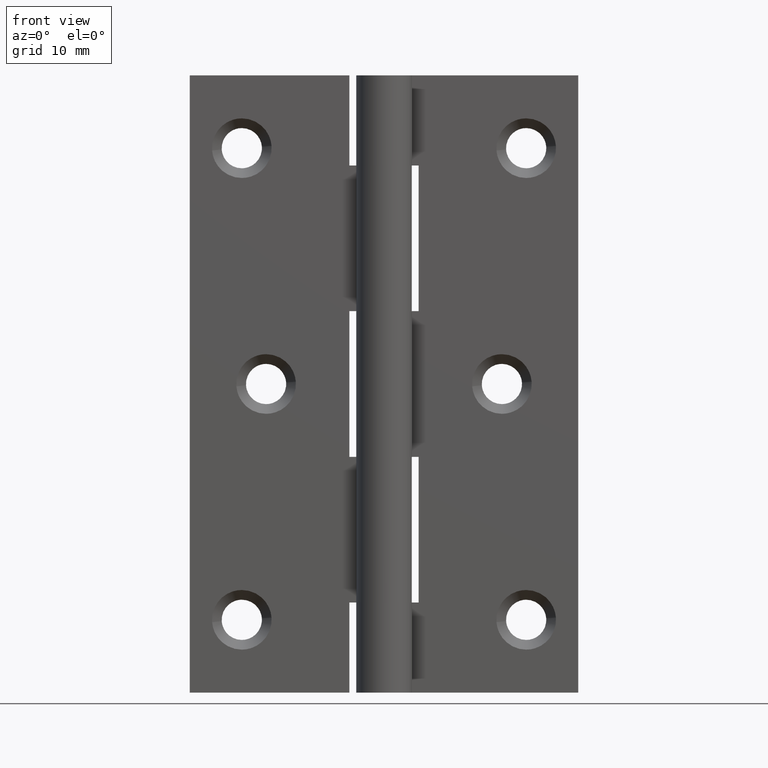
[diagram: clean part render]
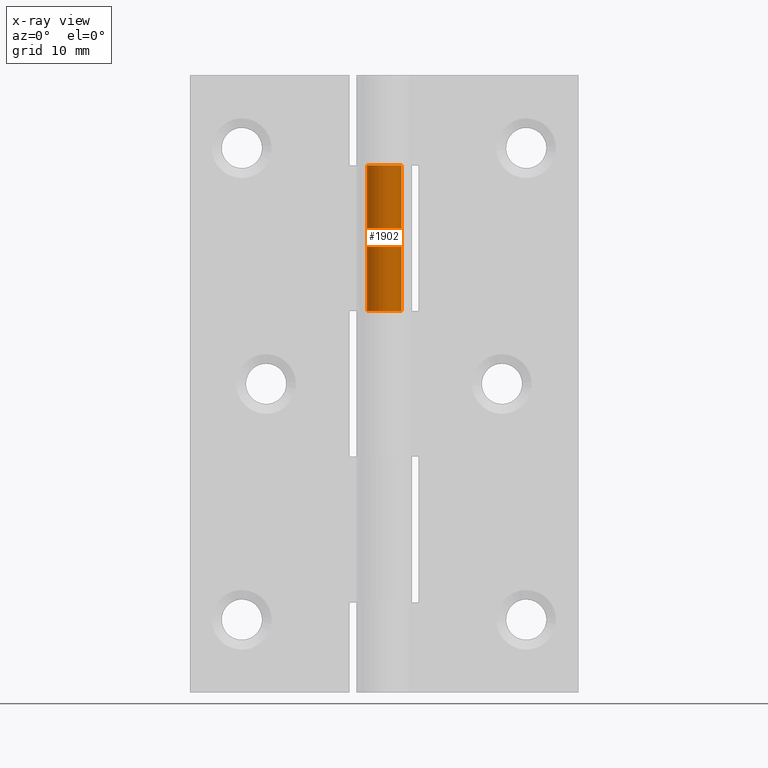
[diagram: x-ray — body ghosted, one internal face saturated and labeled with its STEP entity id]
A machine part, front view, then the same camera in x-ray: the body is ghosted and one INTERNAL B-rep face — a face not visible from any outside direction — is saturated and labeled: STEP entity #1902.
In plain terms, the highlighted face is a freeform B-spline surface patch.
Its self-contained STEP definition (entity closure, byte-faithful):
#1349=CARTESIAN_POINT('',(6.814413E-015,2.500000000000000,76.000008000000093));
#1350=VERTEX_POINT('',#1349);
#1356=CARTESIAN_POINT('',(-1.976176469220295,1.531250000000000,76.000008000000093));
#1357=VERTEX_POINT('',#1356);
#1358=CARTESIAN_POINT('',(-1.976176469220296,1.531250000000001,76.000008000000093));
#1359=CARTESIAN_POINT('',(-3.192936379777227,-0.039056810731882,76.000008000000093));
#1360=CARTESIAN_POINT('',(-1.938129499515712,-1.579130787207626,76.000008000000093));
#1361=CARTESIAN_POINT('',(-0.683322619254197,-3.119204763683372,76.000008000000093));
#1362=CARTESIAN_POINT('',(1.100426053853683,-2.244785624508499,76.000008000000093));
#1363=CARTESIAN_POINT('',(2.884174726961565,-1.370366485333627,76.000008000000093));
#1364=CARTESIAN_POINT('',(2.435360759853789,0.564816757333185,76.000008000000093));
#1365=CARTESIAN_POINT('',(1.986546792746013,2.500000000000000,76.000008000000093));
#1366=CARTESIAN_POINT('',(0.0,2.500000000000000,76.000008000000093));
#1374=(BOUNDED_CURVE()B_SPLINE_CURVE(2,(#1358,#1359,#1360,#1361,#1362,#1363,#1364,#1365,#1366),.UNSPECIFIED.,.F.,.U.)B_SPLINE_CURVE_WITH_KNOTS((3,2,2,2,3),(0.0,0.250000000000000,0.500000000000000,0.750000000000000,1.0),.UNSPECIFIED.)CURVE()GEOMETRIC_REPRESENTATION_ITEM()RATIONAL_B_SPLINE_CURVE((1.0,0.782919760554451,1.0,0.782919760554451,1.0,0.782919760554451,1.0,0.782919760554451,1.0))REPRESENTATION_ITEM(''));
#1375=EDGE_CURVE('',#1357,#1350,#1374,.T.);
#1519=CARTESIAN_POINT('',(-1.976176469220295,1.531250000000000,55.000008000000001));
#1520=VERTEX_POINT('',#1519);
#1526=CARTESIAN_POINT('',(6.814413E-015,2.500000000000000,55.000008000000001));
#1527=VERTEX_POINT('',#1526);
#1528=CARTESIAN_POINT('',(-1.976176469220296,1.531250000000001,55.000008000000001));
#1529=CARTESIAN_POINT('',(-3.192936379777227,-0.039056810731882,55.000008000000008));
#1530=CARTESIAN_POINT('',(-1.938129499515712,-1.579130787207626,55.000008000000001));
#1531=CARTESIAN_POINT('',(-0.683322619254197,-3.119204763683372,55.000008000000008));
#1532=CARTESIAN_POINT('',(1.100426053853683,-2.244785624508499,55.000008000000001));
#1533=CARTESIAN_POINT('',(2.884174726961565,-1.370366485333627,55.000008000000008));
#1534=CARTESIAN_POINT('',(2.435360759853789,0.564816757333185,55.000008000000001));
#1535=CARTESIAN_POINT('',(1.986546792746013,2.500000000000000,55.000008000000008));
#1536=CARTESIAN_POINT('',(0.0,2.500000000000000,55.000008000000001));
#1544=(BOUNDED_CURVE()B_SPLINE_CURVE(2,(#1528,#1529,#1530,#1531,#1532,#1533,#1534,#1535,#1536),.UNSPECIFIED.,.F.,.U.)B_SPLINE_CURVE_WITH_KNOTS((3,2,2,2,3),(0.0,0.250000000000000,0.500000000000000,0.750000000000000,1.0),.UNSPECIFIED.)CURVE()GEOMETRIC_REPRESENTATION_ITEM()RATIONAL_B_SPLINE_CURVE((1.0,0.782919760554451,1.0,0.782919760554451,1.0,0.782919760554451,1.0,0.782919760554451,1.0))REPRESENTATION_ITEM(''));
#1545=EDGE_CURVE('',#1520,#1527,#1544,.T.);
#1866=CARTESIAN_POINT('',(-0.021816338745926,2.499904807660427,54.475007999999988));
#1867=CARTESIAN_POINT('',(-0.021816338745926,2.499904807660427,76.538133000000116));
#1868=CARTESIAN_POINT('',(3.158801843528284,2.527661642030006,54.475007999999988));
#1869=CARTESIAN_POINT('',(3.158801843528284,2.527661642030006,76.538133000000116));
#1870=CARTESIAN_POINT('',(2.434278968140425,-0.569461065630642,54.475007999999988));
#1871=CARTESIAN_POINT('',(2.434278968140425,-0.569461065630642,76.538133000000116));
#1872=CARTESIAN_POINT('',(1.709756092752566,-3.666583773291291,54.475007999999988));
#1873=CARTESIAN_POINT('',(1.709756092752566,-3.666583773291291,76.538133000000116));
#1874=CARTESIAN_POINT('',(-1.128491874342249,-2.230808393731635,54.475007999999988));
#1875=CARTESIAN_POINT('',(-1.128491874342249,-2.230808393731635,76.538133000000116));
#1876=CARTESIAN_POINT('',(-3.966739841437062,-0.795033014171978,54.475007999999988));
#1877=CARTESIAN_POINT('',(-3.966739841437062,-0.795033014171978,76.538133000000116));
#1878=CARTESIAN_POINT('',(-1.901014914000072,1.623620120825465,54.475007999999988));
#1879=CARTESIAN_POINT('',(-1.901014914000072,1.623620120825465,76.538133000000116));
#1887=(BOUNDED_SURFACE()B_SPLINE_SURFACE(1,2,((#1866,#1868,#1870,#1872,#1874,#1876,#1878),(#1867,#1869,#1871,#1873,#1875,#1877,#1879)),.UNSPECIFIED.,.F.,.F.,.U.)B_SPLINE_SURFACE_WITH_KNOTS((2,2),(3,2,2,3),(0.0,22.063125000000142),(0.0,4.859334356218558,9.718668712437117,14.578003068655679),.UNSPECIFIED.)GEOMETRIC_REPRESENTATION_ITEM()RATIONAL_B_SPLINE_SURFACE(((1.0,0.617951097721073,1.0,0.617951097721073,1.0,0.617951097721073,1.0),(1.0,0.617951097721073,1.0,0.617951097721073,1.0,0.617951097721073,1.0)))REPRESENTATION_ITEM('')SURFACE());
#1888=CARTESIAN_POINT('',(-1.976176469220295,1.531250000000000,55.000008000000001));
#1889=CARTESIAN_POINT('',(-1.976176469220295,1.531250000000000,76.000008000000093));
#1890=QUASI_UNIFORM_CURVE('',1,(#1888,#1889),.UNSPECIFIED.,.F.,.U.);
#1891=EDGE_CURVE('',#1520,#1357,#1890,.T.);
#1892=ORIENTED_EDGE('',*,*,#1891,.T.);
#1893=ORIENTED_EDGE('',*,*,#1375,.T.);
#1894=CARTESIAN_POINT('',(6.814413E-015,2.500000000000000,55.000008000000001));
#1895=CARTESIAN_POINT('',(6.814413E-015,2.500000000000000,76.000008000000093));
#1896=QUASI_UNIFORM_CURVE('',1,(#1894,#1895),.UNSPECIFIED.,.F.,.U.);
#1897=EDGE_CURVE('',#1527,#1350,#1896,.T.);
#1898=ORIENTED_EDGE('',*,*,#1897,.F.);
#1899=ORIENTED_EDGE('',*,*,#1545,.F.);
#1900=EDGE_LOOP('',(#1892,#1893,#1898,#1899));
#1901=FACE_OUTER_BOUND('',#1900,.T.);
#1902=ADVANCED_FACE('',(#1901),#1887,.F.);